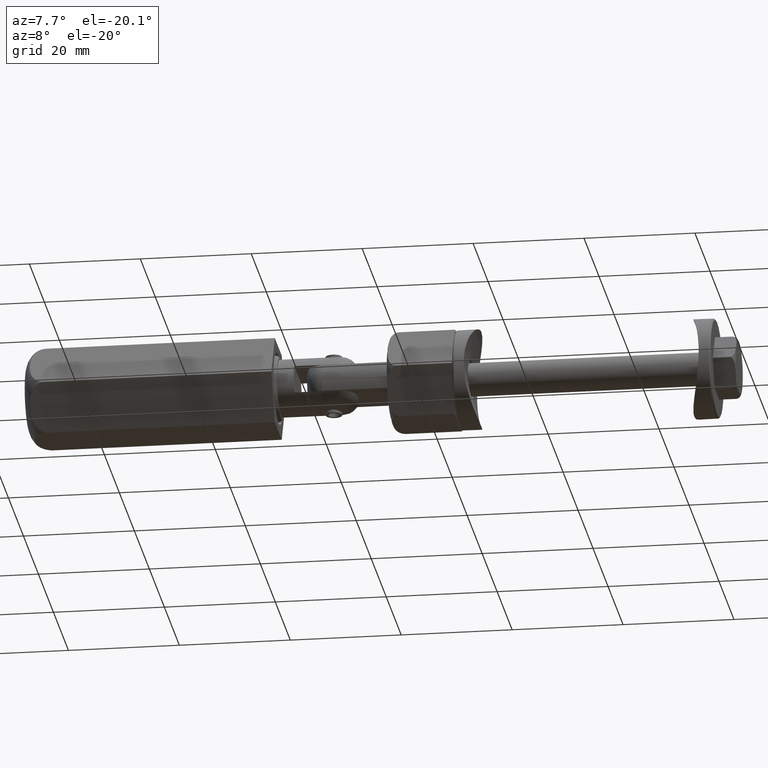
[diagram: clean part render]
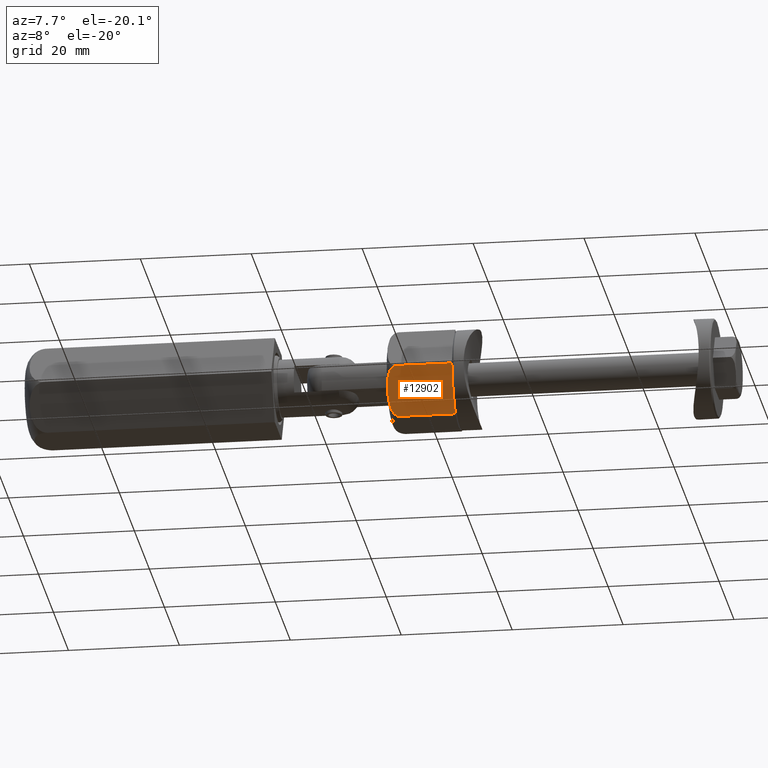
[diagram: same view with one face highlighted and labeled with its STEP entity id]
A machine part, auxiliary view. The second image highlights one B-rep face of the part: STEP entity #12902.
In plain terms, the highlighted planar face has unit normal (0, 0.866, 0.5).
Its self-contained STEP definition (entity closure, byte-faithful):
#3 = ORIENTED_EDGE ( 'NONE', *, *, #5626, .F. ) ;
#218 = CARTESIAN_POINT ( 'NONE',  ( -8.000000000000000000, -4.618802153517020948, 0.000000000000000000 ) ) ;
#947 = CARTESIAN_POINT ( 'NONE',  ( -1.301841277956719889, -8.485985894763526716, 11.48417866383888608 ) ) ;
#1024 = FACE_OUTER_BOUND ( 'NONE', #1156, .T. ) ;
#1045 = CARTESIAN_POINT ( 'NONE',  ( -3.606927285870069166, -7.155143867589523587, 11.84886605213384136 ) ) ;
#1104 = CARTESIAN_POINT ( 'NONE',  ( -7.999999999999994671, -4.618802153517020948, 10.22978406314665634 ) ) ;
#1156 = EDGE_LOOP ( 'NONE', ( #3, #11739, #13123, #13864 ) ) ;
#1169 = CARTESIAN_POINT ( 'NONE',  ( -6.685610266227940635, -5.377665420130392171, 11.48895849832664950 ) ) ;
#1541 = CARTESIAN_POINT ( 'NONE',  ( -7.999999999999996447, -4.618802153517023612, 10.00000000000000178 ) ) ;
#2320 = CARTESIAN_POINT ( 'NONE',  ( -1.717313459822685231E-15, -9.237604307034040119, 10.00000000000000888 ) ) ;
#2455 = CARTESIAN_POINT ( 'NONE',  ( -0.3021333546139416404, -9.063167533416484289, 10.81075421329735775 ) ) ;
#2553 = DIRECTION ( 'NONE',  ( 2.747217888871383579E-32, 1.690114475855316345E-48, -1.000000000000000000 ) ) ;
#2887 = PLANE ( 'NONE',  #6310 ) ;
#3026 = CARTESIAN_POINT ( 'NONE',  ( -8.000000000000000000, -4.618802153517014730, 12.00000000000001066 ) ) ;
#3745 = CARTESIAN_POINT ( 'NONE',  ( -4.384068666613973875, -6.706461082218635461, 11.84910649073066047 ) ) ;
#3912 = CARTESIAN_POINT ( 'NONE',  ( -2.056472692506697175, -8.050299244434153678, 11.70425988622692515 ) ) ;
#5037 = B_SPLINE_CURVE_WITH_KNOTS ( 'NONE', 3,
 ( #5383, #1104, #9474, #6726, #5328, #8131, #8072, #1169, #9305, #5203, #10846, #9417, #3745, #1045, #5156, #17876, #3912, #14992, #947, #12351, #8016, #16493, #17774, #2455, #16378, #7913, #10898, #17656 ),
 .UNSPECIFIED., .F., .F.,
 ( 4, 2, 2, 2, 2, 2, 2, 2, 2, 2, 2, 2, 2, 4 ),
 ( 1.969707858868623009E-07, 0.0006791201289436115014, 0.001358043287101336162, 0.002036966445259061256, 0.002715889603416785699, 0.004073735919732236754, 0.005431582236047686509, 0.006789428552363134528, 0.008147274868678583415, 0.008826198026836307858, 0.009505121184994030567, 0.009844582764072892789, 0.01018404434315175501, 0.01086296750130947945 ),
 .UNSPECIFIED. ) ;
#5156 = CARTESIAN_POINT ( 'NONE',  ( -3.218885814188601646, -7.379179715721556398, 11.83445961516902045 ) ) ;
#5203 = CARTESIAN_POINT ( 'NONE',  ( -5.929754117331722973, -5.814059171164254636, 11.70679489256803407 ) ) ;
#5328 = CARTESIAN_POINT ( 'NONE',  ( -7.553590649774942989, -4.876536712038215704, 10.97676036949329337 ) ) ;
#5383 = CARTESIAN_POINT ( 'NONE',  ( -7.999999999999996447, -4.618802153517023612, 10.00000000000000178 ) ) ;
#5626 = EDGE_CURVE ( 'NONE', #12796, #12113, #5037, .T. ) ;
#6310 = AXIS2_PLACEMENT_3D ( 'NONE', #14333, #8759, #11756 ) ;
#6588 = EDGE_CURVE ( 'NONE', #12796, #13707, #14439, .T. ) ;
#6726 = CARTESIAN_POINT ( 'NONE',  ( -7.702796584296110360, -4.790392625577731600, 10.82516562024756546 ) ) ;
#6763 = CARTESIAN_POINT ( 'NONE',  ( -1.717313459822685231E-15, -9.237604307034040119, 12.00000000000004619 ) ) ;
#7336 = LINE ( 'NONE', #17907, #9714 ) ;
#7913 = CARTESIAN_POINT ( 'NONE',  ( -0.07002018033199298996, -9.197178137070631365, 10.44713880955985275 ) ) ;
#8016 = CARTESIAN_POINT ( 'NONE',  ( -0.7652202335463077487, -8.795804199206699536, 11.22275424229812479 ) ) ;
#8072 = CARTESIAN_POINT ( 'NONE',  ( -7.050803830811434025, -5.166820817311793768, 11.32613496965947064 ) ) ;
#8131 = CARTESIAN_POINT ( 'NONE',  ( -7.226311921546370698, -5.065491173881023990, 11.22816227880353601 ) ) ;
#8152 = CARTESIAN_POINT ( 'NONE',  ( -1.717313459822685231E-15, -9.237604307034040119, 0.000000000000000000 ) ) ;
#8759 = DIRECTION ( 'NONE',  ( 0.5000000000000013323, 0.8660254037844379305, 8.088905766426369782E-32 ) ) ;
#9305 = CARTESIAN_POINT ( 'NONE',  ( -6.496600107093815524, -5.486790486386051491, 11.55277078937159274 ) ) ;
#9417 = CARTESIAN_POINT ( 'NONE',  ( -4.773732801961196870, -6.481488388782372212, 11.83481137998540333 ) ) ;
#9474 = CARTESIAN_POINT ( 'NONE',  ( -7.929287695774363876, -4.659627921396704231, 10.45003051675635852 ) ) ;
#9714 = VECTOR ( 'NONE', #17969, 1000.000000000000000 ) ;
#9749 = EDGE_CURVE ( 'NONE', #12113, #10201, #14184, .T. ) ;
#10201 = VERTEX_POINT ( 'NONE', #8152 ) ;
#10846 = CARTESIAN_POINT ( 'NONE',  ( -5.546127713338838028, -6.035545978777796527, 11.76328656911168480 ) ) ;
#10898 = CARTESIAN_POINT ( 'NONE',  ( 6.118966010965067227E-15, -9.237604307034009921, 10.22813813689904094 ) ) ;
#11739 = ORIENTED_EDGE ( 'NONE', *, *, #6588, .T. ) ;
#11756 = DIRECTION ( 'NONE',  ( -0.8660254037844379305, 0.5000000000000013323, -2.985687800686721840E-33 ) ) ;
#12113 = VERTEX_POINT ( 'NONE', #2320 ) ;
#12351 = CARTESIAN_POINT ( 'NONE',  ( -0.9394014015317917465, -8.695240654982518080, 11.32090123954257699 ) ) ;
#12796 = VERTEX_POINT ( 'NONE', #1541 ) ;
#12902 = ADVANCED_FACE ( 'NONE', ( #1024 ), #2887, .F. ) ;
#13123 = ORIENTED_EDGE ( 'NONE', *, *, #16796, .T. ) ;
#13577 = VECTOR ( 'NONE', #14286, 1000.000000000000000 ) ;
#13707 = VERTEX_POINT ( 'NONE', #218 ) ;
#13864 = ORIENTED_EDGE ( 'NONE', *, *, #9749, .F. ) ;
#14184 = LINE ( 'NONE', #6763, #17227 ) ;
#14286 = DIRECTION ( 'NONE',  ( 2.747217888871383579E-32, 1.690114475855316345E-48, -1.000000000000000000 ) ) ;
#14333 = CARTESIAN_POINT ( 'NONE',  ( -8.000000000000000000, -4.618802153517014730, 12.00000000000001066 ) ) ;
#14439 = LINE ( 'NONE', #3026, #13577 ) ;
#14992 = CARTESIAN_POINT ( 'NONE',  ( -1.489638836319554072, -8.377560923889593170, 11.54839435520707269 ) ) ;
#16378 = CARTESIAN_POINT ( 'NONE',  ( -0.2364343640764304255, -9.101098863288804353, 10.72535235419356248 ) ) ;
#16493 = CARTESIAN_POINT ( 'NONE',  ( -0.5216648107579197058, -8.936420988116163144, 11.03398299201065313 ) ) ;
#16796 = EDGE_CURVE ( 'NONE', #13707, #10201, #7336, .T. ) ;
#17227 = VECTOR ( 'NONE', #2553, 1000.000000000000000 ) ;
#17656 = CARTESIAN_POINT ( 'NONE',  ( -1.717313459822685231E-15, -9.237604307034040119, 10.00000000000000888 ) ) ;
#17774 = CARTESIAN_POINT ( 'NONE',  ( -0.4441751238214152742, -8.981159679728378364, 10.96436074353581880 ) ) ;
#17876 = CARTESIAN_POINT ( 'NONE',  ( -2.444417055330790678, -7.826319462127066195, 11.76207195522261628 ) ) ;
#17907 = CARTESIAN_POINT ( 'NONE',  ( -8.000000000000000000, -4.618802153517020948, 0.000000000000000000 ) ) ;
#17969 = DIRECTION ( 'NONE',  ( 0.8660254037844379305, -0.5000000000000013323, 2.985687800686723551E-33 ) ) ;